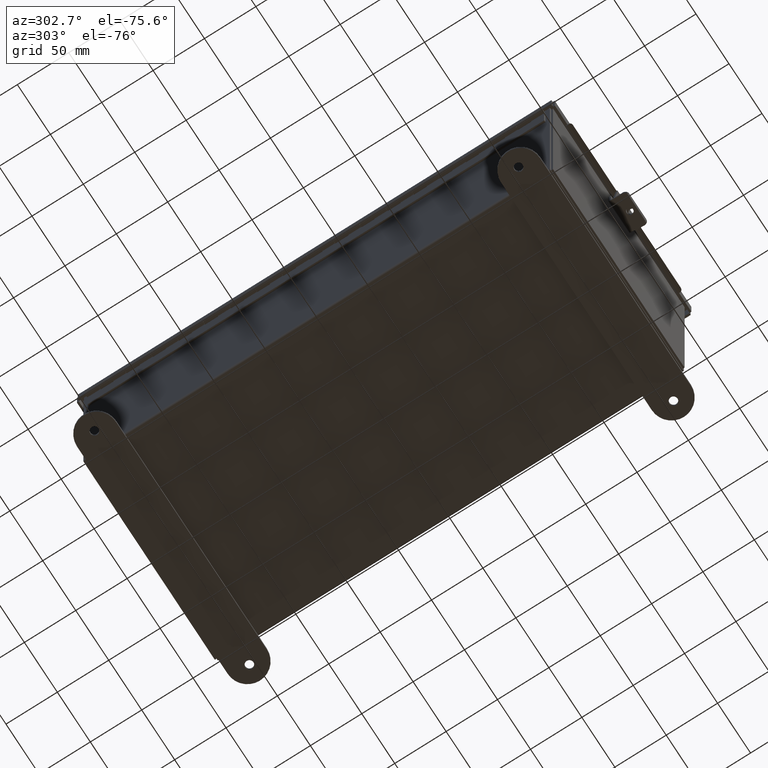
[diagram: clean part render]
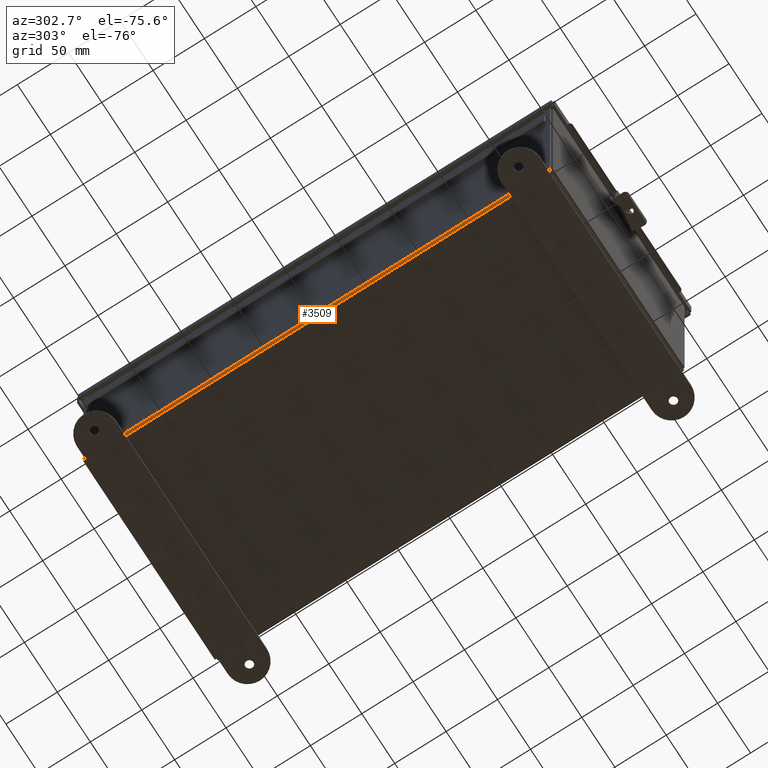
[diagram: same view with one face highlighted and labeled with its STEP entity id]
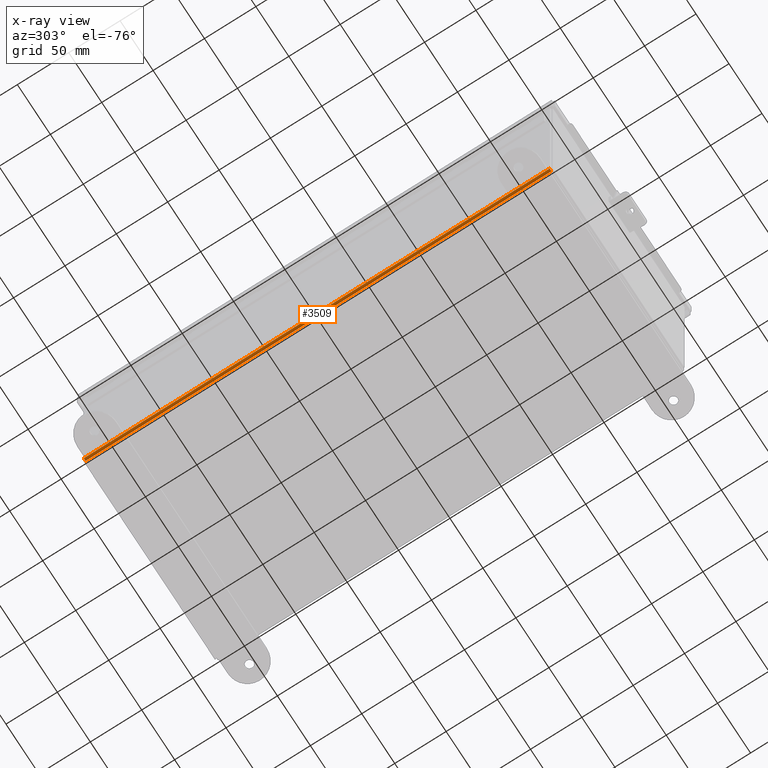
[diagram: x-ray of the same camera — body ghosted, the highlighted face saturated]
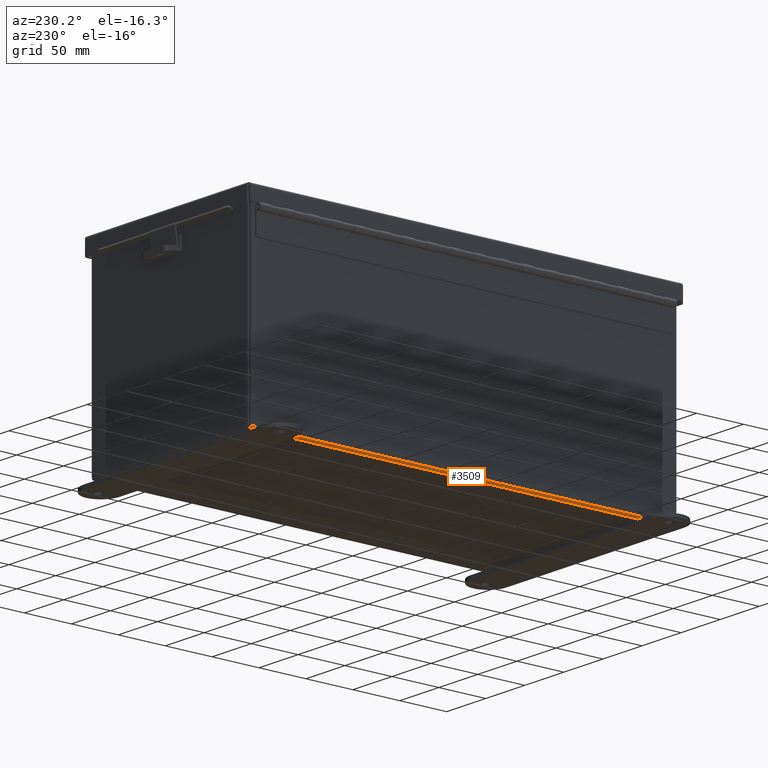
[diagram: same view with one face highlighted and labeled with its STEP entity id]
A machine part, auxiliary view. The second image highlights one B-rep face of the part: STEP entity #3509.
The next image is the same camera in x-ray: the body ghosted, the highlighted face saturated — about 0% of this face is hidden behind the body in this view.
A second angle (auxiliary view) of the same face is appended — the face is thin or edge-on in the first view.
In plain terms, the highlighted cylindrical surface (edge-blend (fillet) strip) has radius 2.2276 mm, axis along (0, -1, 0).
Its self-contained STEP definition (entity closure, byte-faithful):
#9 = CYLINDRICAL_SURFACE ( 'NONE', #1945, 0.08770000000000026400 ) ;
#887 = VECTOR ( 'NONE', #12413, 39.37007874015748100 ) ;
#971 = FACE_OUTER_BOUND ( 'NONE', #18086, .T. ) ;
#1143 = DIRECTION ( 'NONE',  ( -1.000000000000000000, 0.0000000000000000000, -3.480030137311043200E-015 ) ) ;
#1527 = CARTESIAN_POINT ( 'NONE',  ( -3.999999999999999600, 8.925299999999996500, 0.01299999999999984300 ) ) ;
#1945 = AXIS2_PLACEMENT_3D ( 'NONE', #7171, #5767, #1143 ) ;
#1965 = EDGE_CURVE ( 'NONE', #11857, #15790, #16738, .T. ) ;
#2826 = CARTESIAN_POINT ( 'NONE',  ( -3.912299999999999200, 8.925299999999998200, -0.07470000000000000300 ) ) ;
#3016 = DIRECTION ( 'NONE',  ( 1.065092651769884500E-031, 1.000000000000000000, -3.060791226809479400E-017 ) ) ;
#3509 = ADVANCED_FACE ( 'NONE', ( #971 ), #9, .T. ) ;
#3716 = ORIENTED_EDGE ( 'NONE', *, *, #5439, .F. ) ;
#4587 = VECTOR ( 'NONE', #3016, 39.37007874015748100 ) ;
#5208 = EDGE_CURVE ( 'NONE', #11857, #12941, #8551, .T. ) ;
#5270 = LINE ( 'NONE', #12475, #887 ) ;
#5439 = EDGE_CURVE ( 'NONE', #15790, #17820, #5270, .T. ) ;
#5767 = DIRECTION ( 'NONE',  ( 0.0000000000000000000, -1.000000000000000000, 0.0000000000000000000 ) ) ;
#5787 = CARTESIAN_POINT ( 'NONE',  ( -3.912299999999999200, 8.925299999999996500, 0.01300000000000042300 ) ) ;
#6544 = CIRCLE ( 'NONE', #13402, 0.08770000000000009700 ) ;
#7171 = CARTESIAN_POINT ( 'NONE',  ( -3.912299999999999200, -8.925299999999998200, 0.01300000000000042300 ) ) ;
#7304 = DIRECTION ( 'NONE',  ( 0.0000000000000000000, 0.0000000000000000000, -1.000000000000000000 ) ) ;
#7381 = CARTESIAN_POINT ( 'NONE',  ( -3.912299999999999200, -8.925299999999996500, -0.07469999999999966900 ) ) ;
#8551 = LINE ( 'NONE', #1527, #4587 ) ;
#9881 = CARTESIAN_POINT ( 'NONE',  ( -3.999999999999999600, -8.925299999999998200, 0.01300000000000039000 ) ) ;
#11303 = EDGE_CURVE ( 'NONE', #17820, #12941, #6544, .T. ) ;
#11589 = AXIS2_PLACEMENT_3D ( 'NONE', #14336, #15093, #17185 ) ;
#11857 = VERTEX_POINT ( 'NONE', #9881 ) ;
#12413 = DIRECTION ( 'NONE',  ( -0.0000000000000000000, 1.000000000000000000, -0.0000000000000000000 ) ) ;
#12475 = CARTESIAN_POINT ( 'NONE',  ( -3.912299999999999200, -8.925299999999998200, -0.07469999999999966900 ) ) ;
#12941 = VERTEX_POINT ( 'NONE', #14997 ) ;
#13208 = ORIENTED_EDGE ( 'NONE', *, *, #1965, .F. ) ;
#13402 = AXIS2_PLACEMENT_3D ( 'NONE', #5787, #16234, #7304 ) ;
#13958 = ORIENTED_EDGE ( 'NONE', *, *, #5208, .T. ) ;
#14293 = ORIENTED_EDGE ( 'NONE', *, *, #11303, .F. ) ;
#14336 = CARTESIAN_POINT ( 'NONE',  ( -3.912299999999999200, -8.925299999999996500, 0.01300000000000042300 ) ) ;
#14997 = CARTESIAN_POINT ( 'NONE',  ( -3.999999999999999600, 8.925299999999996500, 0.01300000000000011600 ) ) ;
#15093 = DIRECTION ( 'NONE',  ( 0.0000000000000000000, -1.000000000000000000, 0.0000000000000000000 ) ) ;
#15790 = VERTEX_POINT ( 'NONE', #7381 ) ;
#16234 = DIRECTION ( 'NONE',  ( -0.0000000000000000000, 1.000000000000000000, -0.0000000000000000000 ) ) ;
#16738 = CIRCLE ( 'NONE', #11589, 0.08770000000000009700 ) ;
#17185 = DIRECTION ( 'NONE',  ( 0.0000000000000000000, 0.0000000000000000000, -1.000000000000000000 ) ) ;
#17820 = VERTEX_POINT ( 'NONE', #2826 ) ;
#18086 = EDGE_LOOP ( 'NONE', ( #3716, #13208, #13958, #14293 ) ) ;